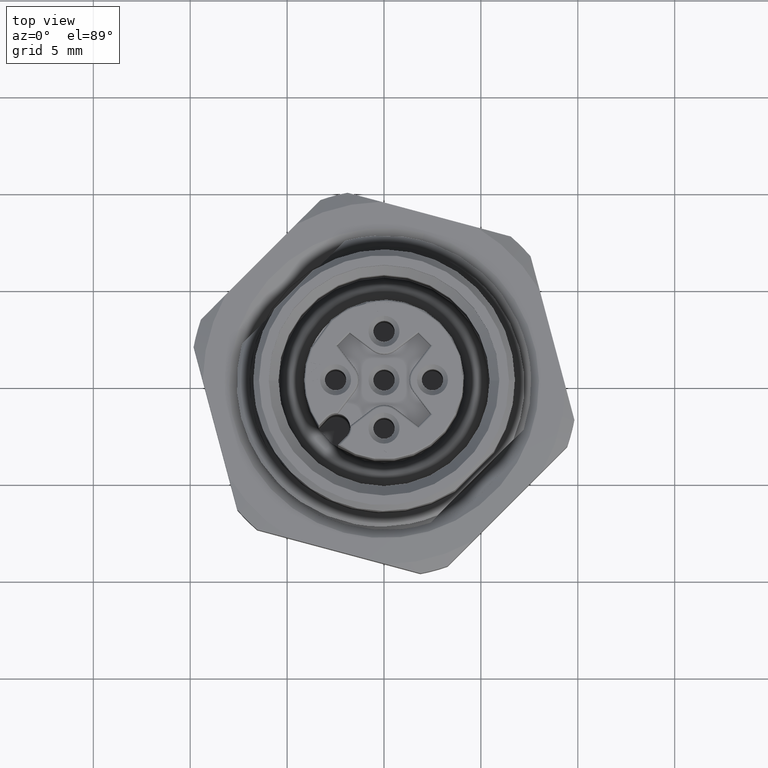
[diagram: clean part render]
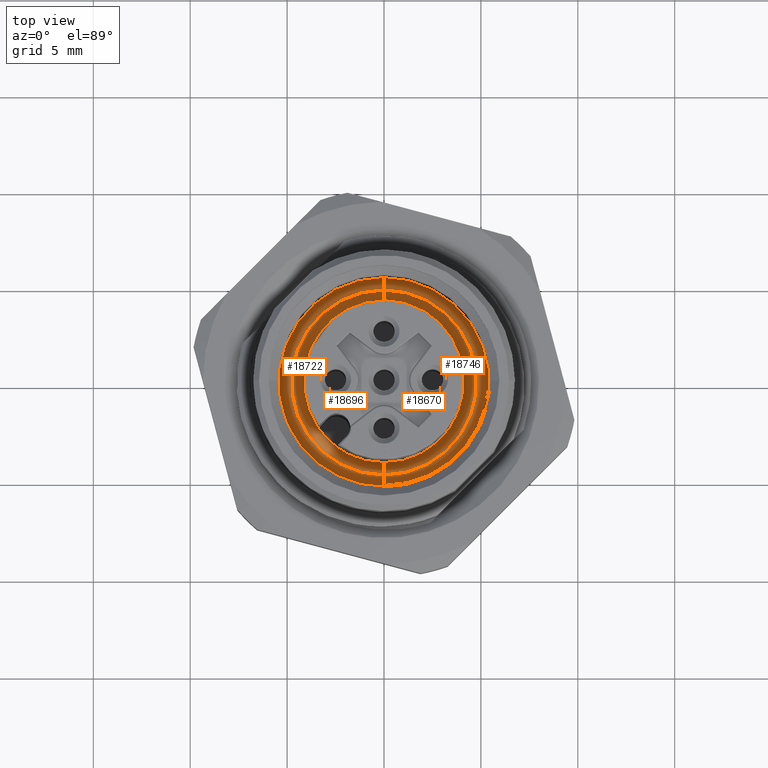
[diagram: same view with one multi-face feature highlighted, each face labeled with its STEP entity id]
A machine part, top view. The highlighted faces form ONE feature: a constant-radius fillet chain: 4 tangent blend faces with common blend radius 0.65 mm. The faces share edges in the B-rep.
Their STEP definitions:
[1] entity #18746 (Torus):
#18607=CARTESIAN_POINT('',(0.E0,0.E0,5.6E0));
#18608=DIRECTION('',(0.E0,0.E0,1.E0));
#18609=DIRECTION('',(0.E0,-1.E0,0.E0));
#18610=AXIS2_PLACEMENT_3D('',#18607,#18608,#18609);
#18627=CARTESIAN_POINT('',(0.E0,-4.775E0,6.25E0));
#18628=DIRECTION('',(1.E0,0.E0,0.E0));
#18629=DIRECTION('',(0.E0,0.E0,1.E0));
#18630=AXIS2_PLACEMENT_3D('',#18627,#18628,#18629);
#18632=CARTESIAN_POINT('',(0.E0,4.775E0,6.25E0));
#18633=DIRECTION('',(-1.E0,0.E0,0.E0));
#18634=DIRECTION('',(0.E0,0.E0,1.E0));
#18635=AXIS2_PLACEMENT_3D('',#18632,#18633,#18634);
#18642=CARTESIAN_POINT('',(0.E0,0.E0,6.9E0));
#18643=DIRECTION('',(0.E0,0.E0,1.E0));
#18644=DIRECTION('',(0.E0,-1.E0,0.E0));
#18645=AXIS2_PLACEMENT_3D('',#18642,#18643,#18644);
#18647=CARTESIAN_POINT('',(0.E0,-4.775E0,5.6E0));
#18648=CARTESIAN_POINT('',(0.E0,-4.775E0,6.9E0));
#18649=VERTEX_POINT('',#18647);
#18650=VERTEX_POINT('',#18648);
#18651=CARTESIAN_POINT('',(0.E0,4.775E0,5.6E0));
#18652=CARTESIAN_POINT('',(0.E0,4.775E0,6.9E0));
#18653=VERTEX_POINT('',#18651);
#18654=VERTEX_POINT('',#18652);
#18735=CARTESIAN_POINT('',(0.E0,0.E0,6.25E0));
#18736=DIRECTION('',(0.E0,0.E0,1.E0));
#18737=DIRECTION('',(0.E0,1.E0,0.E0));
#18738=AXIS2_PLACEMENT_3D('',#18735,#18736,#18737);
#18739=TOROIDAL_SURFACE('',#18738,4.775E0,6.5E-1);
#18740=ORIENTED_EDGE('',*,*,#18714,.F.);
#18741=ORIENTED_EDGE('',*,*,#18666,.T.);
#18742=ORIENTED_EDGE('',*,*,#18717,.T.);
#18743=ORIENTED_EDGE('',*,*,#18662,.F.);
#18744=EDGE_LOOP('',(#18740,#18741,#18742,#18743));
#18745=FACE_OUTER_BOUND('',#18744,.F.);
#18611=CIRCLE('',#18610,4.775E0);
#18631=CIRCLE('',#18630,6.5E-1);
#18636=CIRCLE('',#18635,6.5E-1);
#18646=CIRCLE('',#18645,4.775E0);
#18662=EDGE_CURVE('',#18649,#18653,#18611,.T.);
#18666=EDGE_CURVE('',#18650,#18654,#18646,.T.);
#18714=EDGE_CURVE('',#18650,#18649,#18631,.T.);
#18717=EDGE_CURVE('',#18654,#18653,#18636,.T.);
#18746=ADVANCED_FACE('',(#18745),#18739,.T.);
[2] entity #18670 (Torus):
#18607=CARTESIAN_POINT('',(0.E0,0.E0,5.6E0));
#18608=DIRECTION('',(0.E0,0.E0,1.E0));
#18609=DIRECTION('',(0.E0,-1.E0,0.E0));
#18610=AXIS2_PLACEMENT_3D('',#18607,#18608,#18609);
#18612=CARTESIAN_POINT('',(0.E0,-4.775E0,6.25E0));
#18613=DIRECTION('',(1.E0,0.E0,0.E0));
#18614=DIRECTION('',(0.E0,0.E0,-1.E0));
#18615=AXIS2_PLACEMENT_3D('',#18612,#18613,#18614);
#18617=CARTESIAN_POINT('',(0.E0,4.775E0,6.25E0));
#18618=DIRECTION('',(-1.E0,0.E0,0.E0));
#18619=DIRECTION('',(0.E0,0.E0,-1.E0));
#18620=AXIS2_PLACEMENT_3D('',#18617,#18618,#18619);
#18642=CARTESIAN_POINT('',(0.E0,0.E0,6.9E0));
#18643=DIRECTION('',(0.E0,0.E0,1.E0));
#18644=DIRECTION('',(0.E0,-1.E0,0.E0));
#18645=AXIS2_PLACEMENT_3D('',#18642,#18643,#18644);
#18647=CARTESIAN_POINT('',(0.E0,-4.775E0,5.6E0));
#18648=CARTESIAN_POINT('',(0.E0,-4.775E0,6.9E0));
#18649=VERTEX_POINT('',#18647);
#18650=VERTEX_POINT('',#18648);
#18651=CARTESIAN_POINT('',(0.E0,4.775E0,5.6E0));
#18652=CARTESIAN_POINT('',(0.E0,4.775E0,6.9E0));
#18653=VERTEX_POINT('',#18651);
#18654=VERTEX_POINT('',#18652);
#18655=CARTESIAN_POINT('',(0.E0,0.E0,6.25E0));
#18656=DIRECTION('',(0.E0,0.E0,1.E0));
#18657=DIRECTION('',(0.E0,1.E0,0.E0));
#18658=AXIS2_PLACEMENT_3D('',#18655,#18656,#18657);
#18659=TOROIDAL_SURFACE('',#18658,4.775E0,6.5E-1);
#18661=ORIENTED_EDGE('',*,*,#18660,.F.);
#18663=ORIENTED_EDGE('',*,*,#18662,.T.);
#18665=ORIENTED_EDGE('',*,*,#18664,.T.);
#18667=ORIENTED_EDGE('',*,*,#18666,.F.);
#18668=EDGE_LOOP('',(#18661,#18663,#18665,#18667));
#18669=FACE_OUTER_BOUND('',#18668,.F.);
#18611=CIRCLE('',#18610,4.775E0);
#18616=CIRCLE('',#18615,6.5E-1);
#18621=CIRCLE('',#18620,6.5E-1);
#18646=CIRCLE('',#18645,4.775E0);
#18660=EDGE_CURVE('',#18649,#18650,#18616,.T.);
#18662=EDGE_CURVE('',#18649,#18653,#18611,.T.);
#18664=EDGE_CURVE('',#18653,#18654,#18621,.T.);
#18666=EDGE_CURVE('',#18650,#18654,#18646,.T.);
#18670=ADVANCED_FACE('',(#18669),#18659,.T.);
[3] entity #18696 (Torus):
#18612=CARTESIAN_POINT('',(0.E0,-4.775E0,6.25E0));
#18613=DIRECTION('',(1.E0,0.E0,0.E0));
#18614=DIRECTION('',(0.E0,0.E0,-1.E0));
#18615=AXIS2_PLACEMENT_3D('',#18612,#18613,#18614);
#18617=CARTESIAN_POINT('',(0.E0,4.775E0,6.25E0));
#18618=DIRECTION('',(-1.E0,0.E0,0.E0));
#18619=DIRECTION('',(0.E0,0.E0,-1.E0));
#18620=AXIS2_PLACEMENT_3D('',#18617,#18618,#18619);
#18622=CARTESIAN_POINT('',(0.E0,0.E0,5.6E0));
#18623=DIRECTION('',(0.E0,0.E0,-1.E0));
#18624=DIRECTION('',(0.E0,-1.E0,0.E0));
#18625=AXIS2_PLACEMENT_3D('',#18622,#18623,#18624);
#18637=CARTESIAN_POINT('',(0.E0,0.E0,6.9E0));
#18638=DIRECTION('',(0.E0,0.E0,-1.E0));
#18639=DIRECTION('',(0.E0,-1.E0,0.E0));
#18640=AXIS2_PLACEMENT_3D('',#18637,#18638,#18639);
#18647=CARTESIAN_POINT('',(0.E0,-4.775E0,5.6E0));
#18648=CARTESIAN_POINT('',(0.E0,-4.775E0,6.9E0));
#18649=VERTEX_POINT('',#18647);
#18650=VERTEX_POINT('',#18648);
#18651=CARTESIAN_POINT('',(0.E0,4.775E0,5.6E0));
#18652=CARTESIAN_POINT('',(0.E0,4.775E0,6.9E0));
#18653=VERTEX_POINT('',#18651);
#18654=VERTEX_POINT('',#18652);
#18683=CARTESIAN_POINT('',(0.E0,0.E0,6.25E0));
#18684=DIRECTION('',(0.E0,0.E0,1.E0));
#18685=DIRECTION('',(0.E0,1.E0,0.E0));
#18686=AXIS2_PLACEMENT_3D('',#18683,#18684,#18685);
#18687=TOROIDAL_SURFACE('',#18686,4.775E0,6.5E-1);
#18688=ORIENTED_EDGE('',*,*,#18660,.T.);
#18690=ORIENTED_EDGE('',*,*,#18689,.T.);
#18691=ORIENTED_EDGE('',*,*,#18664,.F.);
#18693=ORIENTED_EDGE('',*,*,#18692,.F.);
#18694=EDGE_LOOP('',(#18688,#18690,#18691,#18693));
#18695=FACE_OUTER_BOUND('',#18694,.F.);
#18616=CIRCLE('',#18615,6.5E-1);
#18621=CIRCLE('',#18620,6.5E-1);
#18626=CIRCLE('',#18625,4.775E0);
#18641=CIRCLE('',#18640,4.775E0);
#18660=EDGE_CURVE('',#18649,#18650,#18616,.T.);
#18664=EDGE_CURVE('',#18653,#18654,#18621,.T.);
#18689=EDGE_CURVE('',#18650,#18654,#18641,.T.);
#18692=EDGE_CURVE('',#18649,#18653,#18626,.T.);
#18696=ADVANCED_FACE('',(#18695),#18687,.T.);
[4] entity #18722 (Torus):
#18622=CARTESIAN_POINT('',(0.E0,0.E0,5.6E0));
#18623=DIRECTION('',(0.E0,0.E0,-1.E0));
#18624=DIRECTION('',(0.E0,-1.E0,0.E0));
#18625=AXIS2_PLACEMENT_3D('',#18622,#18623,#18624);
#18627=CARTESIAN_POINT('',(0.E0,-4.775E0,6.25E0));
#18628=DIRECTION('',(1.E0,0.E0,0.E0));
#18629=DIRECTION('',(0.E0,0.E0,1.E0));
#18630=AXIS2_PLACEMENT_3D('',#18627,#18628,#18629);
#18632=CARTESIAN_POINT('',(0.E0,4.775E0,6.25E0));
#18633=DIRECTION('',(-1.E0,0.E0,0.E0));
#18634=DIRECTION('',(0.E0,0.E0,1.E0));
#18635=AXIS2_PLACEMENT_3D('',#18632,#18633,#18634);
#18637=CARTESIAN_POINT('',(0.E0,0.E0,6.9E0));
#18638=DIRECTION('',(0.E0,0.E0,-1.E0));
#18639=DIRECTION('',(0.E0,-1.E0,0.E0));
#18640=AXIS2_PLACEMENT_3D('',#18637,#18638,#18639);
#18647=CARTESIAN_POINT('',(0.E0,-4.775E0,5.6E0));
#18648=CARTESIAN_POINT('',(0.E0,-4.775E0,6.9E0));
#18649=VERTEX_POINT('',#18647);
#18650=VERTEX_POINT('',#18648);
#18651=CARTESIAN_POINT('',(0.E0,4.775E0,5.6E0));
#18652=CARTESIAN_POINT('',(0.E0,4.775E0,6.9E0));
#18653=VERTEX_POINT('',#18651);
#18654=VERTEX_POINT('',#18652);
#18709=CARTESIAN_POINT('',(0.E0,0.E0,6.25E0));
#18710=DIRECTION('',(0.E0,0.E0,1.E0));
#18711=DIRECTION('',(0.E0,1.E0,0.E0));
#18712=AXIS2_PLACEMENT_3D('',#18709,#18710,#18711);
#18713=TOROIDAL_SURFACE('',#18712,4.775E0,6.5E-1);
#18715=ORIENTED_EDGE('',*,*,#18714,.T.);
#18716=ORIENTED_EDGE('',*,*,#18692,.T.);
#18718=ORIENTED_EDGE('',*,*,#18717,.F.);
#18719=ORIENTED_EDGE('',*,*,#18689,.F.);
#18720=EDGE_LOOP('',(#18715,#18716,#18718,#18719));
#18721=FACE_OUTER_BOUND('',#18720,.F.);
#18626=CIRCLE('',#18625,4.775E0);
#18631=CIRCLE('',#18630,6.5E-1);
#18636=CIRCLE('',#18635,6.5E-1);
#18641=CIRCLE('',#18640,4.775E0);
#18689=EDGE_CURVE('',#18650,#18654,#18641,.T.);
#18692=EDGE_CURVE('',#18649,#18653,#18626,.T.);
#18714=EDGE_CURVE('',#18650,#18649,#18631,.T.);
#18717=EDGE_CURVE('',#18654,#18653,#18636,.T.);
#18722=ADVANCED_FACE('',(#18721),#18713,.T.);